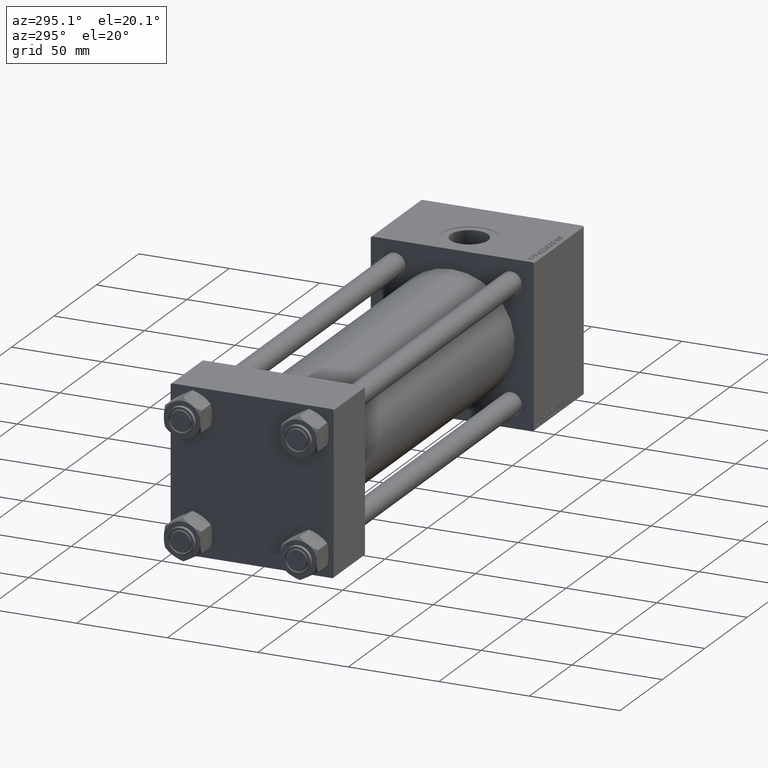
[diagram: clean part render]
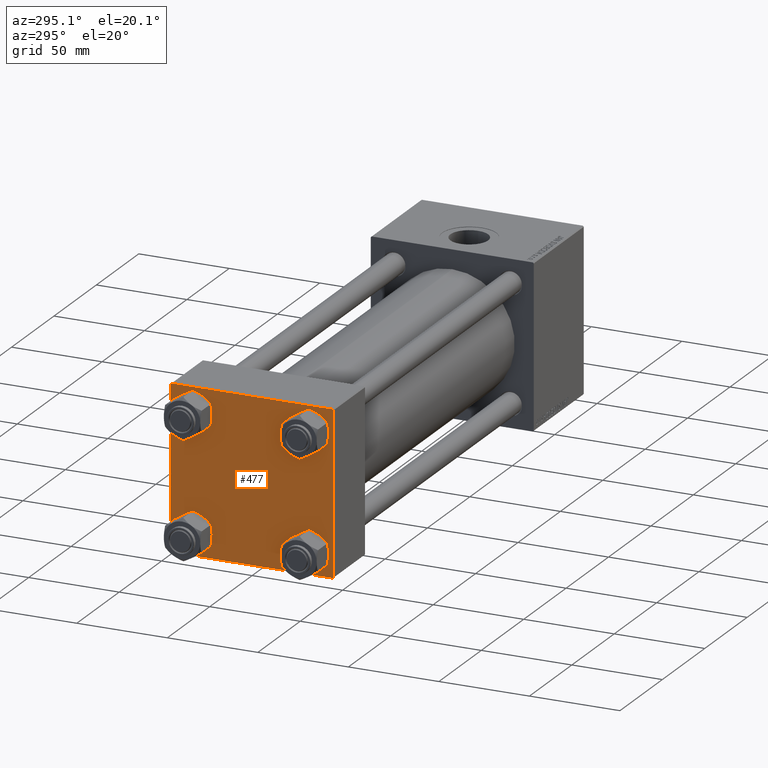
[diagram: same view with one face highlighted and labeled with its STEP entity id]
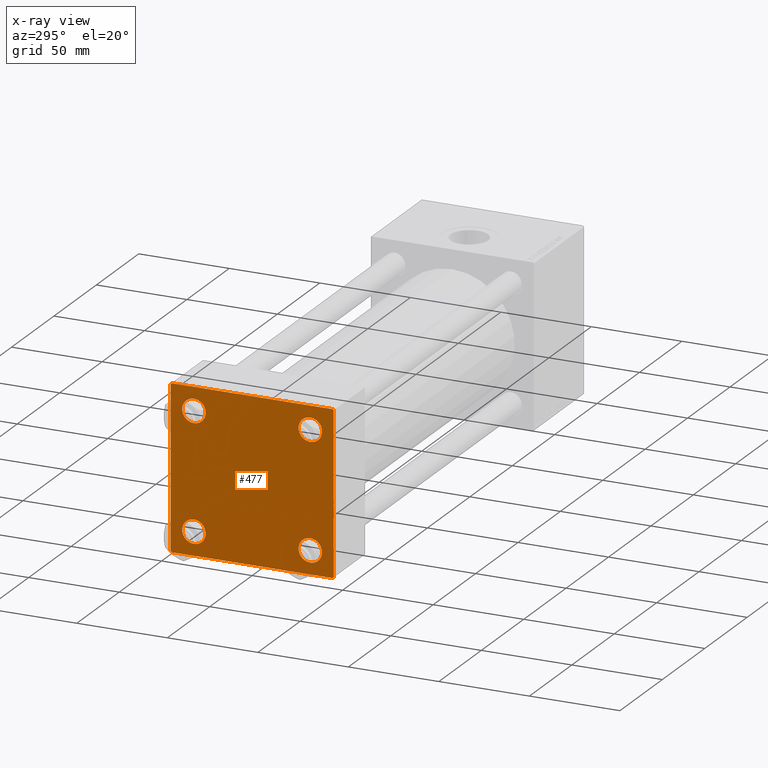
[diagram: x-ray of the same camera — body ghosted, the highlighted face saturated]
A machine part, auxiliary view. The second image highlights one B-rep face of the part: STEP entity #477.
The next image is the same camera in x-ray: the body ghosted, the highlighted face saturated — about 0% of this face is hidden behind the body in this view.
In plain terms, the highlighted planar face has unit normal (-1, 0, 0).
Its self-contained STEP definition (entity closure, byte-faithful):
#43 = ORIENTED_EDGE ( 'NONE', *, *, #14274, .T. ) ;
#193 = CARTESIAN_POINT ( 'NONE',  ( 0.000000000000000000, -44.49999999999995737, -45.00000000000000000 ) ) ;
#235 = EDGE_LOOP ( 'NONE', ( #33507, #43 ) ) ;
#477 = ADVANCED_FACE ( 'NONE', ( #3295, #18782, #49430, #34203, #49682 ), #15224, .T. ) ;
#581 = AXIS2_PLACEMENT_3D ( 'NONE', #42646, #15541, #22640 ) ;
#1399 = VERTEX_POINT ( 'NONE', #27945 ) ;
#1620 = VECTOR ( 'NONE', #23858, 1000.000000000000114 ) ;
#2084 = ORIENTED_EDGE ( 'NONE', *, *, #11864, .F. ) ;
#2636 = VERTEX_POINT ( 'NONE', #29866 ) ;
#2755 = ORIENTED_EDGE ( 'NONE', *, *, #39567, .T. ) ;
#2964 = DIRECTION ( 'NONE',  ( 1.000000000000000000, -0.000000000000000000, 0.000000000000000000 ) ) ;
#3295 = FACE_BOUND ( 'NONE', #36742, .T. ) ;
#3523 = ORIENTED_EDGE ( 'NONE', *, *, #49549, .T. ) ;
#4004 = CIRCLE ( 'NONE', #20214, 6.499999999999977796 ) ;
#4606 = CIRCLE ( 'NONE', #581, 6.499999999999977796 ) ;
#5485 = DIRECTION ( 'NONE',  ( 0.000000000000000000, -1.000000000000000000, -1.541976423090495387E-16 ) ) ;
#5626 = CARTESIAN_POINT ( 'NONE',  ( 0.000000000000000000, 32.14999999999999147, -38.64999999999998437 ) ) ;
#5658 = DIRECTION ( 'NONE',  ( 0.000000000000000000, 0.000000000000000000, 1.000000000000000000 ) ) ;
#6088 = CARTESIAN_POINT ( 'NONE',  ( 0.000000000000000000, -32.14999999999997726, -25.65000000000003411 ) ) ;
#6393 = VERTEX_POINT ( 'NONE', #18565 ) ;
#6483 = EDGE_CURVE ( 'NONE', #6766, #6933, #28154, .T. ) ;
#6766 = VERTEX_POINT ( 'NONE', #34619 ) ;
#6933 = VERTEX_POINT ( 'NONE', #32319 ) ;
#7083 = LINE ( 'NONE', #18266, #24443 ) ;
#7624 = LINE ( 'NONE', #23093, #31405 ) ;
#8485 = DIRECTION ( 'NONE',  ( 1.000000000000000000, -0.000000000000000000, 0.000000000000000000 ) ) ;
#8671 = CARTESIAN_POINT ( 'NONE',  ( 0.000000000000000000, -44.74999999999998579, -44.74999999999998579 ) ) ;
#8801 = CIRCLE ( 'NONE', #34686, 6.500000000000019540 ) ;
#9166 = LINE ( 'NONE', #8671, #15040 ) ;
#9239 = CARTESIAN_POINT ( 'NONE',  ( -0.000000000000000000, -44.75000000000029843, 44.74999999999967315 ) ) ;
#9497 = EDGE_CURVE ( 'NONE', #45516, #14059, #7083, .T. ) ;
#9573 = DIRECTION ( 'NONE',  ( 1.000000000000000000, -0.000000000000000000, 0.000000000000000000 ) ) ;
#10031 = CARTESIAN_POINT ( 'NONE',  ( 0.000000000000000000, -45.00000000000000711, 44.49999999999997158 ) ) ;
#10173 = CIRCLE ( 'NONE', #24760, 6.500000000000019540 ) ;
#10368 = ORIENTED_EDGE ( 'NONE', *, *, #46835, .T. ) ;
#10441 = EDGE_CURVE ( 'NONE', #6393, #42187, #13925, .T. ) ;
#10830 = CARTESIAN_POINT ( 'NONE',  ( 0.000000000000000000, 32.14999999999999147, 32.15000000000000568 ) ) ;
#11070 = CIRCLE ( 'NONE', #35348, 6.499999999999977796 ) ;
#11158 = DIRECTION ( 'NONE',  ( -0.000000000000000000, 0.000000000000000000, 1.000000000000000000 ) ) ;
#11355 = LINE ( 'NONE', #31110, #14661 ) ;
#11435 = LINE ( 'NONE', #26895, #39070 ) ;
#11864 = EDGE_CURVE ( 'NONE', #6766, #14072, #40710, .T. ) ;
#12299 = EDGE_CURVE ( 'NONE', #21418, #33740, #11435, .T. ) ;
#13193 = CARTESIAN_POINT ( 'NONE',  ( 0.000000000000000000, -44.49999999999995737, 45.00000000000000000 ) ) ;
#13217 = CARTESIAN_POINT ( 'NONE',  ( 0.000000000000000000, 32.14999999999999147, -32.15000000000000568 ) ) ;
#13239 = CARTESIAN_POINT ( 'NONE',  ( 0.000000000000000000, -32.14999999999997726, 32.15000000000001279 ) ) ;
#13337 = ORIENTED_EDGE ( 'NONE', *, *, #34677, .T. ) ;
#13915 = CARTESIAN_POINT ( 'NONE',  ( 0.000000000000000000, -32.14999999999997726, 25.64999999999999147 ) ) ;
#13925 = CIRCLE ( 'NONE', #21215, 6.499999999999977796 ) ;
#14059 = VERTEX_POINT ( 'NONE', #48392 ) ;
#14072 = VERTEX_POINT ( 'NONE', #13193 ) ;
#14274 = EDGE_CURVE ( 'NONE', #42187, #6393, #48036, .T. ) ;
#14661 = VECTOR ( 'NONE', #26817, 1000.000000000000000 ) ;
#15040 = VECTOR ( 'NONE', #20094, 1000.000000000000114 ) ;
#15224 = PLANE ( 'NONE',  #45297 ) ;
#15541 = DIRECTION ( 'NONE',  ( 1.000000000000000000, -0.000000000000000000, 0.000000000000000000 ) ) ;
#15569 = VECTOR ( 'NONE', #44693, 1000.000000000000114 ) ;
#16017 = CARTESIAN_POINT ( 'NONE',  ( 0.000000000000000000, 44.74999999999999289, 44.74999999999999289 ) ) ;
#17018 = VERTEX_POINT ( 'NONE', #48674 ) ;
#17095 = CARTESIAN_POINT ( 'NONE',  ( 0.000000000000000000, -32.14999999999997726, 32.15000000000001279 ) ) ;
#17238 = VECTOR ( 'NONE', #5485, 1000.000000000000000 ) ;
#17804 = DIRECTION ( 'NONE',  ( 0.000000000000000000, 0.000000000000000000, 1.000000000000000000 ) ) ;
#18266 = CARTESIAN_POINT ( 'NONE',  ( 0.000000000000000000, -45.00000000000000711, 45.00000000000000000 ) ) ;
#18565 = CARTESIAN_POINT ( 'NONE',  ( 0.000000000000000000, 32.14999999999999147, -25.65000000000002700 ) ) ;
#18782 = FACE_BOUND ( 'NONE', #47708, .T. ) ;
#20094 = DIRECTION ( 'NONE',  ( 0.000000000000000000, -0.7071067811865474617, 0.7071067811865474617 ) ) ;
#20214 = AXIS2_PLACEMENT_3D ( 'NONE', #10830, #2964, #33866 ) ;
#20583 = ORIENTED_EDGE ( 'NONE', *, *, #6483, .T. ) ;
#21212 = CARTESIAN_POINT ( 'NONE',  ( 0.000000000000000000, 44.99999999999998579, 45.00000000000001421 ) ) ;
#21215 = AXIS2_PLACEMENT_3D ( 'NONE', #13217, #44374, #24868 ) ;
#21418 = VERTEX_POINT ( 'NONE', #24677 ) ;
#22313 = EDGE_CURVE ( 'NONE', #34305, #2636, #10173, .T. ) ;
#22433 = ORIENTED_EDGE ( 'NONE', *, *, #31331, .T. ) ;
#22635 = EDGE_CURVE ( 'NONE', #50029, #14059, #9166, .T. ) ;
#22640 = DIRECTION ( 'NONE',  ( 0.000000000000000000, 0.000000000000000000, 1.000000000000000000 ) ) ;
#23093 = CARTESIAN_POINT ( 'NONE',  ( 0.000000000000000000, 44.99999999999998579, -44.99999999999998579 ) ) ;
#23317 = CARTESIAN_POINT ( 'NONE',  ( 0.000000000000000000, 0.000000000000000000, 0.000000000000000000 ) ) ;
#23858 = DIRECTION ( 'NONE',  ( 0.000000000000000000, 0.7071067811865474617, -0.7071067811865474617 ) ) ;
#24105 = ORIENTED_EDGE ( 'NONE', *, *, #22313, .T. ) ;
#24443 = VECTOR ( 'NONE', #49917, 1000.000000000000000 ) ;
#24677 = CARTESIAN_POINT ( 'NONE',  ( 0.000000000000000000, 44.99999999999998579, -44.49999999999995737 ) ) ;
#24760 = AXIS2_PLACEMENT_3D ( 'NONE', #17095, #40380, #5658 ) ;
#24868 = DIRECTION ( 'NONE',  ( 0.000000000000000000, 0.000000000000000000, 1.000000000000000000 ) ) ;
#25030 = DIRECTION ( 'NONE',  ( 0.000000000000000000, 0.000000000000000000, 1.000000000000000000 ) ) ;
#25090 = EDGE_CURVE ( 'NONE', #45098, #36353, #35354, .T. ) ;
#25481 = EDGE_CURVE ( 'NONE', #36353, #45098, #4606, .T. ) ;
#25741 = ORIENTED_EDGE ( 'NONE', *, *, #9497, .F. ) ;
#26817 = DIRECTION ( 'NONE',  ( 0.000000000000000000, 0.000000000000000000, -1.000000000000000000 ) ) ;
#26895 = CARTESIAN_POINT ( 'NONE',  ( 0.000000000000000000, 44.74999999999998579, -44.74999999999998579 ) ) ;
#27945 = CARTESIAN_POINT ( 'NONE',  ( 0.000000000000000000, 32.14999999999999147, 38.64999999999999147 ) ) ;
#28154 = LINE ( 'NONE', #16017, #1620 ) ;
#28453 = CARTESIAN_POINT ( 'NONE',  ( 0.000000000000000000, 32.14999999999999147, 32.15000000000000568 ) ) ;
#28944 = DIRECTION ( 'NONE',  ( 0.000000000000000000, 0.000000000000000000, 1.000000000000000000 ) ) ;
#29866 = CARTESIAN_POINT ( 'NONE',  ( 0.000000000000000000, -32.14999999999997726, 38.65000000000003411 ) ) ;
#30435 = DIRECTION ( 'NONE',  ( -0.000000000000000000, -0.7071067811865474617, -0.7071067811865474617 ) ) ;
#31110 = CARTESIAN_POINT ( 'NONE',  ( 0.000000000000000000, 44.99999999999998579, 45.00000000000001421 ) ) ;
#31231 = ORIENTED_EDGE ( 'NONE', *, *, #12299, .T. ) ;
#31331 = EDGE_CURVE ( 'NONE', #33740, #50029, #7624, .T. ) ;
#31405 = VECTOR ( 'NONE', #38780, 1000.000000000000000 ) ;
#32319 = CARTESIAN_POINT ( 'NONE',  ( 0.000000000000000000, 44.99999999999998579, 44.50000000000001421 ) ) ;
#32380 = CARTESIAN_POINT ( 'NONE',  ( 0.000000000000000000, 32.14999999999999147, -32.15000000000000568 ) ) ;
#32608 = ORIENTED_EDGE ( 'NONE', *, *, #25090, .T. ) ;
#33507 = ORIENTED_EDGE ( 'NONE', *, *, #10441, .T. ) ;
#33740 = VERTEX_POINT ( 'NONE', #48749 ) ;
#33866 = DIRECTION ( 'NONE',  ( 0.000000000000000000, 0.000000000000000000, 1.000000000000000000 ) ) ;
#34203 = FACE_BOUND ( 'NONE', #36636, .T. ) ;
#34305 = VERTEX_POINT ( 'NONE', #13915 ) ;
#34505 = ORIENTED_EDGE ( 'NONE', *, *, #25481, .T. ) ;
#34619 = CARTESIAN_POINT ( 'NONE',  ( 0.000000000000000000, 44.49999999999998579, 45.00000000000001421 ) ) ;
#34677 = EDGE_CURVE ( 'NONE', #2636, #34305, #8801, .T. ) ;
#34686 = AXIS2_PLACEMENT_3D ( 'NONE', #13239, #47704, #17804 ) ;
#35348 = AXIS2_PLACEMENT_3D ( 'NONE', #28453, #40854, #28944 ) ;
#35354 = CIRCLE ( 'NONE', #41794, 6.499999999999977796 ) ;
#36353 = VERTEX_POINT ( 'NONE', #42250 ) ;
#36358 = EDGE_CURVE ( 'NONE', #17018, #1399, #4004, .T. ) ;
#36636 = EDGE_LOOP ( 'NONE', ( #3523, #39370 ) ) ;
#36742 = EDGE_LOOP ( 'NONE', ( #13337, #24105 ) ) ;
#38308 = AXIS2_PLACEMENT_3D ( 'NONE', #32380, #9573, #25030 ) ;
#38780 = DIRECTION ( 'NONE',  ( 0.000000000000000000, -1.000000000000000000, -1.541976423090495633E-16 ) ) ;
#39070 = VECTOR ( 'NONE', #30435, 1000.000000000000114 ) ;
#39138 = DIRECTION ( 'NONE',  ( 0.000000000000000000, 0.000000000000000000, 1.000000000000000000 ) ) ;
#39370 = ORIENTED_EDGE ( 'NONE', *, *, #36358, .T. ) ;
#39488 = ORIENTED_EDGE ( 'NONE', *, *, #22635, .T. ) ;
#39567 = EDGE_CURVE ( 'NONE', #6933, #21418, #11355, .T. ) ;
#40153 = LINE ( 'NONE', #9239, #15569 ) ;
#40380 = DIRECTION ( 'NONE',  ( 1.000000000000000000, -0.000000000000000000, 0.000000000000000000 ) ) ;
#40710 = LINE ( 'NONE', #21212, #17238 ) ;
#40854 = DIRECTION ( 'NONE',  ( 1.000000000000000000, -0.000000000000000000, 0.000000000000000000 ) ) ;
#41794 = AXIS2_PLACEMENT_3D ( 'NONE', #49803, #8485, #39138 ) ;
#42187 = VERTEX_POINT ( 'NONE', #5626 ) ;
#42250 = CARTESIAN_POINT ( 'NONE',  ( 0.000000000000000000, -32.14999999999997726, -38.64999999999999147 ) ) ;
#42646 = CARTESIAN_POINT ( 'NONE',  ( 0.000000000000000000, -32.14999999999997726, -32.15000000000001279 ) ) ;
#44374 = DIRECTION ( 'NONE',  ( 1.000000000000000000, -0.000000000000000000, 0.000000000000000000 ) ) ;
#44693 = DIRECTION ( 'NONE',  ( -0.000000000000000000, 0.7071067811865425767, 0.7071067811865524577 ) ) ;
#45098 = VERTEX_POINT ( 'NONE', #6088 ) ;
#45297 = AXIS2_PLACEMENT_3D ( 'NONE', #23317, #45870, #11158 ) ;
#45516 = VERTEX_POINT ( 'NONE', #10031 ) ;
#45870 = DIRECTION ( 'NONE',  ( -1.000000000000000000, 0.000000000000000000, -0.000000000000000000 ) ) ;
#46835 = EDGE_CURVE ( 'NONE', #45516, #14072, #40153, .T. ) ;
#47704 = DIRECTION ( 'NONE',  ( 1.000000000000000000, -0.000000000000000000, 0.000000000000000000 ) ) ;
#47708 = EDGE_LOOP ( 'NONE', ( #32608, #34505 ) ) ;
#48036 = CIRCLE ( 'NONE', #38308, 6.499999999999977796 ) ;
#48392 = CARTESIAN_POINT ( 'NONE',  ( 0.000000000000000000, -45.00000000000000000, -44.49999999999995737 ) ) ;
#48674 = CARTESIAN_POINT ( 'NONE',  ( 0.000000000000000000, 32.14999999999999147, 25.65000000000002700 ) ) ;
#48749 = CARTESIAN_POINT ( 'NONE',  ( 0.000000000000000000, 44.49999999999998579, -44.99999999999998579 ) ) ;
#49418 = EDGE_LOOP ( 'NONE', ( #2755, #31231, #22433, #39488, #25741, #10368, #2084, #20583 ) ) ;
#49430 = FACE_BOUND ( 'NONE', #235, .T. ) ;
#49549 = EDGE_CURVE ( 'NONE', #1399, #17018, #11070, .T. ) ;
#49682 = FACE_OUTER_BOUND ( 'NONE', #49418, .T. ) ;
#49803 = CARTESIAN_POINT ( 'NONE',  ( 0.000000000000000000, -32.14999999999997726, -32.15000000000001279 ) ) ;
#49917 = DIRECTION ( 'NONE',  ( 0.000000000000000000, 7.709882115452476934E-17, -1.000000000000000000 ) ) ;
#50029 = VERTEX_POINT ( 'NONE', #193 ) ;